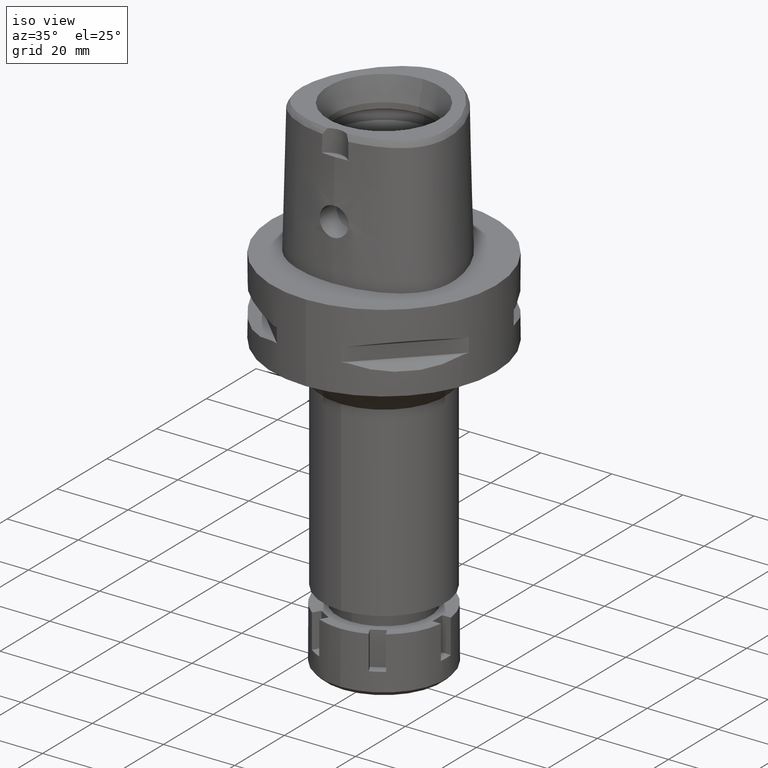
[diagram: clean part render]
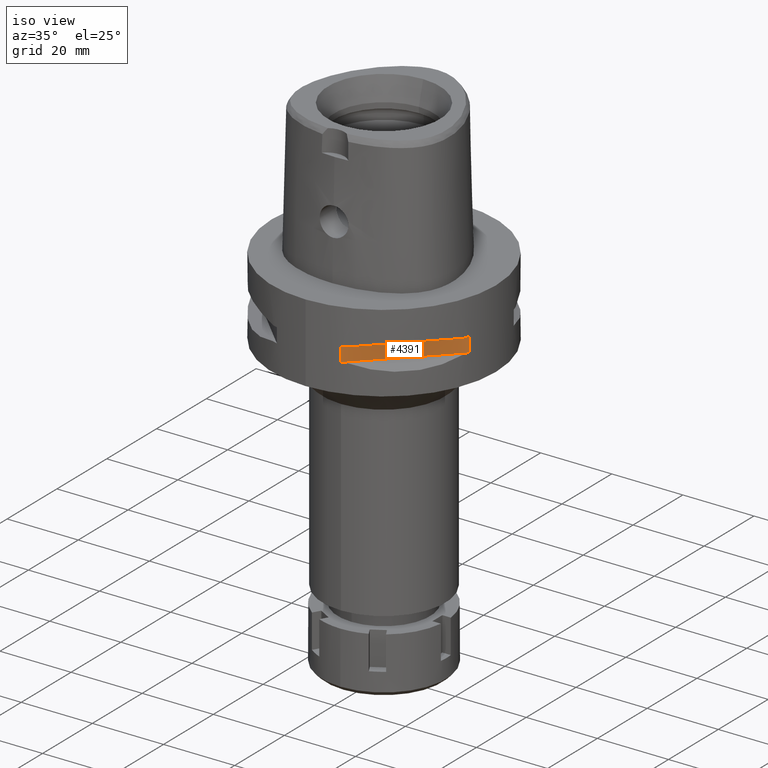
[diagram: same view with one face highlighted and labeled with its STEP entity id]
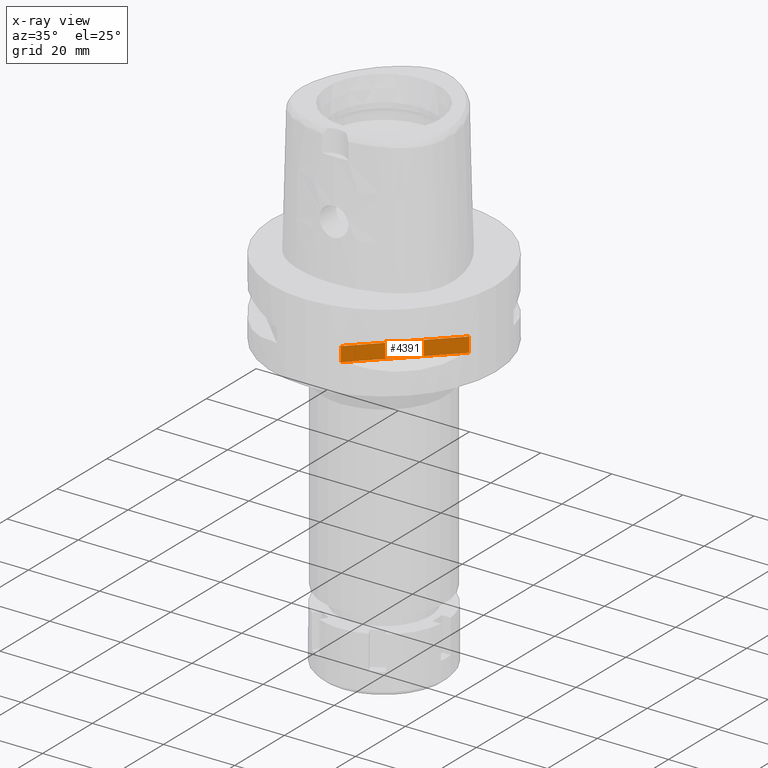
[diagram: x-ray of the same camera — body ghosted, the highlighted face saturated]
A machine part, iso view. The second image highlights one B-rep face of the part: STEP entity #4391.
The next image is the same camera in x-ray: the body ghosted, the highlighted face saturated — about 0% of this face is hidden behind the body in this view.
In plain terms, the highlighted planar face has unit normal (-0.7071, 0.7071, 0).
Its self-contained STEP definition (entity closure, byte-faithful):
#65 = ORIENTED_EDGE ( 'NONE', *, *, #1893, .F. ) ;
#95 = DIRECTION ( 'NONE',  ( 0.7071067811865474617, 0.7071067811865474617, 0.0000000000000000000 ) ) ;
#319 = VECTOR ( 'NONE', #95, 1000.000000000000114 ) ;
#344 = LINE ( 'NONE', #4618, #4464 ) ;
#376 = VERTEX_POINT ( 'NONE', #3810 ) ;
#548 = CARTESIAN_POINT ( 'NONE',  ( 8.981198972017999438, -30.19251670572000279, -9.950000000000001066 ) ) ;
#1149 = DIRECTION ( 'NONE',  ( 0.0000000000000000000, 0.0000000000000000000, 1.000000000000000000 ) ) ;
#1325 = VECTOR ( 'NONE', #5343, 1000.000000000000000 ) ;
#1521 = LINE ( 'NONE', #548, #319 ) ;
#1530 = VERTEX_POINT ( 'NONE', #5401 ) ;
#1533 = CARTESIAN_POINT ( 'NONE',  ( 8.981198972017999438, -30.19251670572000279, -9.950000000000001066 ) ) ;
#1893 = EDGE_CURVE ( 'NONE', #3225, #376, #1521, .T. ) ;
#2058 = FACE_OUTER_BOUND ( 'NONE', #4977, .T. ) ;
#2146 = ORIENTED_EDGE ( 'NONE', *, *, #4995, .T. ) ;
#2181 = DIRECTION ( 'NONE',  ( 0.7071067811865474617, 0.7071067811865474617, 0.0000000000000000000 ) ) ;
#2205 = ORIENTED_EDGE ( 'NONE', *, *, #4530, .T. ) ;
#2207 = CARTESIAN_POINT ( 'NONE',  ( 8.981198972017999438, -30.19251670572000279, -14.05000000000000071 ) ) ;
#2456 = DIRECTION ( 'NONE',  ( 0.0000000000000000000, 0.0000000000000000000, 1.000000000000000000 ) ) ;
#2917 = ORIENTED_EDGE ( 'NONE', *, *, #4299, .T. ) ;
#3169 = CARTESIAN_POINT ( 'NONE',  ( 8.981198972019999616, -30.19251670572000279, -9.950000000000001066 ) ) ;
#3225 = VERTEX_POINT ( 'NONE', #3169 ) ;
#3355 = PLANE ( 'NONE',  #3767 ) ;
#3381 = CARTESIAN_POINT ( 'NONE',  ( 33.72899346260000186, -5.444722215136000187, -9.950000000000001066 ) ) ;
#3397 = VECTOR ( 'NONE', #2181, 1000.000000000000114 ) ;
#3655 = LINE ( 'NONE', #1533, #1325 ) ;
#3718 = CARTESIAN_POINT ( 'NONE',  ( 30.19251670572000279, -8.981198972019999616, -14.05000000000000071 ) ) ;
#3767 = AXIS2_PLACEMENT_3D ( 'NONE', #3381, #5520, #2456 ) ;
#3810 = CARTESIAN_POINT ( 'NONE',  ( 30.19251670572000279, -8.981198972017999438, -9.950000000000001066 ) ) ;
#4299 = EDGE_CURVE ( 'NONE', #1530, #4929, #4396, .T. ) ;
#4391 = ADVANCED_FACE ( 'NONE', ( #2058 ), #3355, .F. ) ;
#4396 = LINE ( 'NONE', #2207, #3397 ) ;
#4464 = VECTOR ( 'NONE', #1149, 1000.000000000000000 ) ;
#4530 = EDGE_CURVE ( 'NONE', #4929, #376, #344, .T. ) ;
#4618 = CARTESIAN_POINT ( 'NONE',  ( 30.19251670572000279, -8.981198972017999438, -14.05000000000000071 ) ) ;
#4929 = VERTEX_POINT ( 'NONE', #3718 ) ;
#4977 = EDGE_LOOP ( 'NONE', ( #65, #2146, #2917, #2205 ) ) ;
#4995 = EDGE_CURVE ( 'NONE', #3225, #1530, #3655, .T. ) ;
#5343 = DIRECTION ( 'NONE',  ( 0.0000000000000000000, 0.0000000000000000000, -1.000000000000000000 ) ) ;
#5401 = CARTESIAN_POINT ( 'NONE',  ( 8.981198972017999438, -30.19251670572000279, -14.05000000000000071 ) ) ;
#5520 = DIRECTION ( 'NONE',  ( -0.7071067811865475727, 0.7071067811865475727, 0.0000000000000000000 ) ) ;